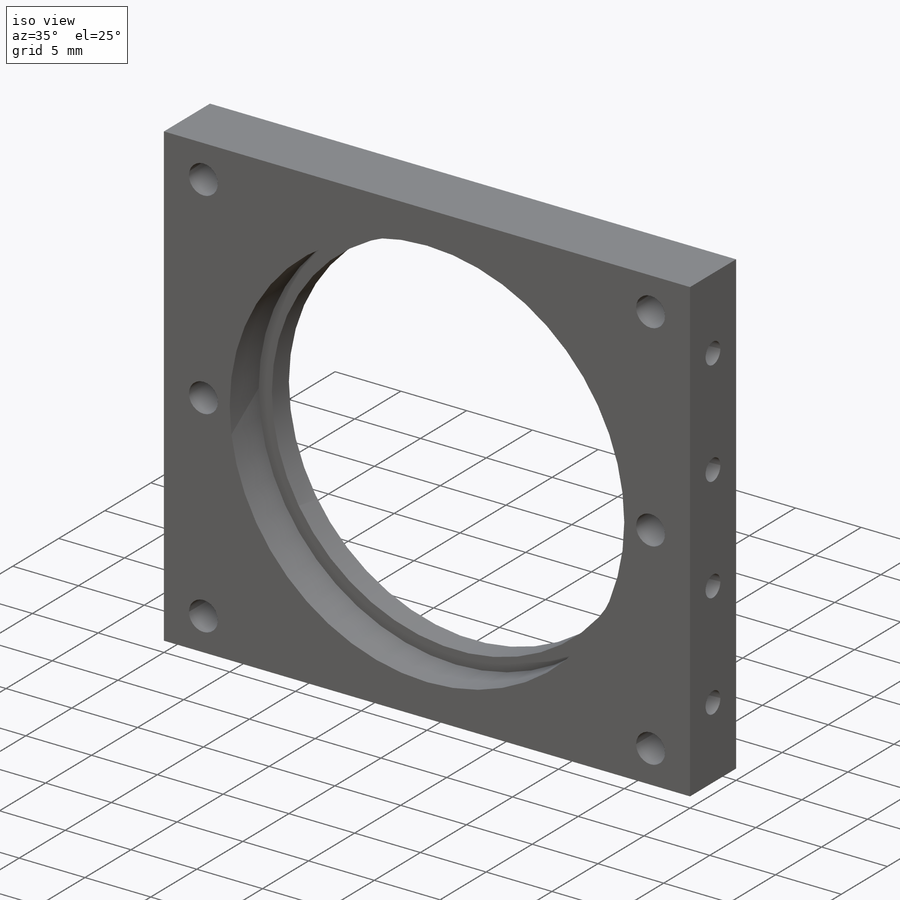
[diagram: iso view]
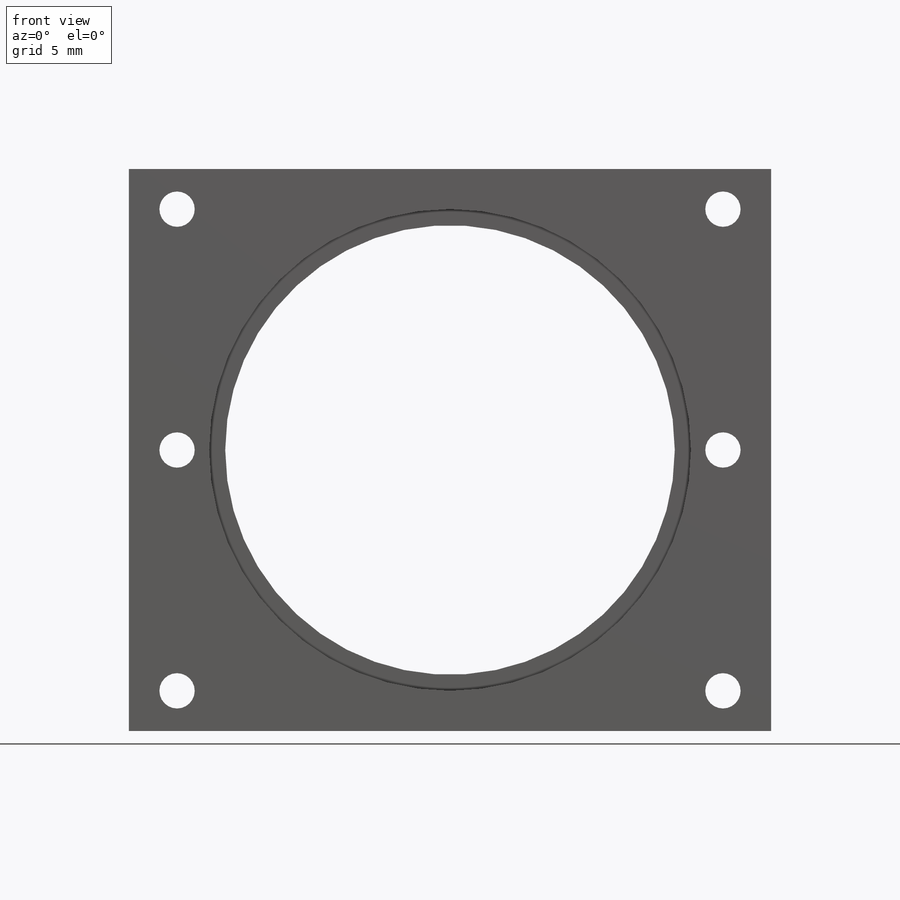
[diagram: front view]
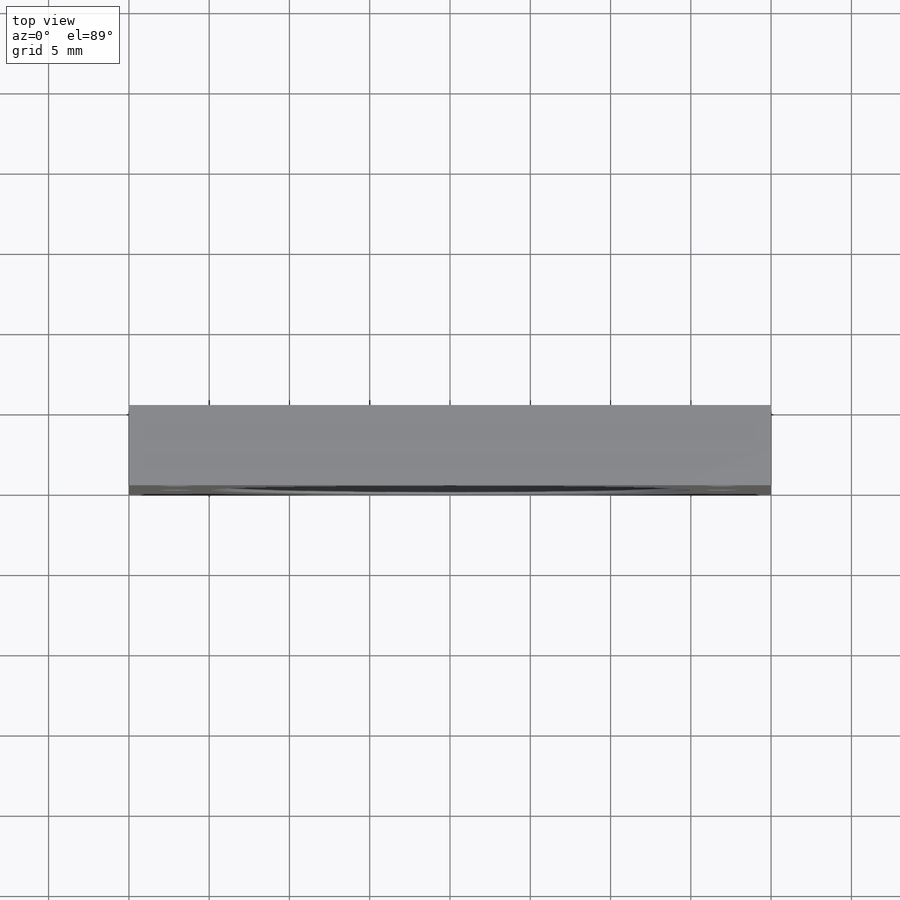
[diagram: top view]
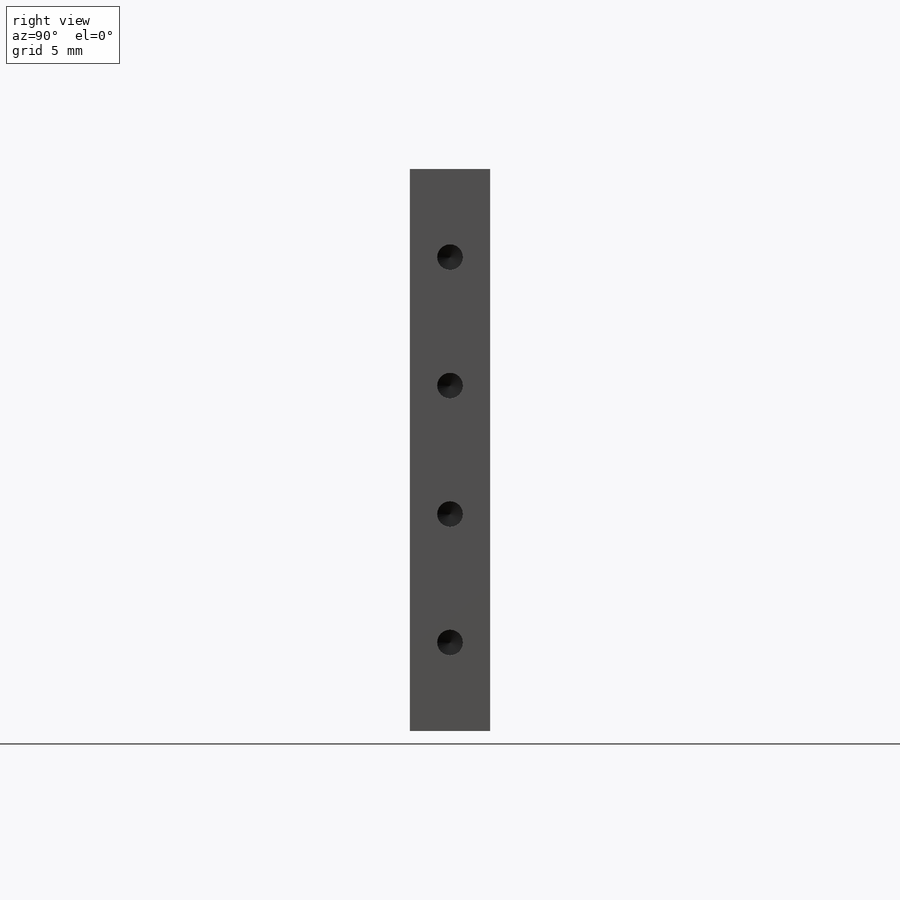
[diagram: right view]
SOLIDWORKS PART (.sldprt)
format: sldprt  version: not decoded by parser v0  size: 306,176 bytes
history: native  units: mm
features: sketch x7, extrude x3, hole x2, material x1, pattern_circular x1, pattern_linear x1, mirror x1 (+12 scaffold rows collapsed)
feature tree (28):
  scaffold x12  (default folders/planes/origin — collapsed)
  material  "POM Acetal Copolymer"
  sketch  "Sketch1"  dims[D1=30.0mm D2=17.5mm]
  extrude  "Boss-Extrude1"  Depth=5mm
  sketch  "Sketch3"  dims[D1=28.0mm]
  extrude  "Boss-Extrude3"  Depth=1.85mm
  sketch  "Sketch6"  dims[D1=40.0mm]
  extrude  "Boss-Extrude4"  [1 undecoded]
  hole  "Dégagement M21"  Diameter=2.2mm Depth=5mm
  sketch  "Sketch5"  dims[c1.D1=15.0mm c1.D2=3.0mm c2.D1=30.0mm]
  sketch  "Sketch4"  dims[hole-wizard template sketch: 59 standard entries collapsed; hole parameters kept: c18.Diamètre du perçage jusqu'au prochain=2.2mm c18.Profondeur du perçage jusqu'au prochain=5.0mm]
  pattern_circular  "CirPattern1"  Count=4 Angle=360deg
  hole  "Tap Drill for M2 Tap1"  Diameter=1.6mm Depth=5mm
  sketch  "Sketch8"  dims[D1=12.0mm]
  sketch  "Sketch7"  dims[hole-wizard template sketch: 49 standard entries collapsed; hole parameters kept: c15.Drill Angle=118.0deg]
  pattern_linear  "LPattern1"  Count1=4 Count2=1 Spacing1=8mm Spacing2=10mm
  mirror  "Mirror1"
decode coverage: 13 of 15 modeling features carry decoded parameters
note: ~ marks probable driven/reference dimensions
note: 1 parameter value undecoded
note: suppression state not decoded; provenance and decode notes live in map.json
